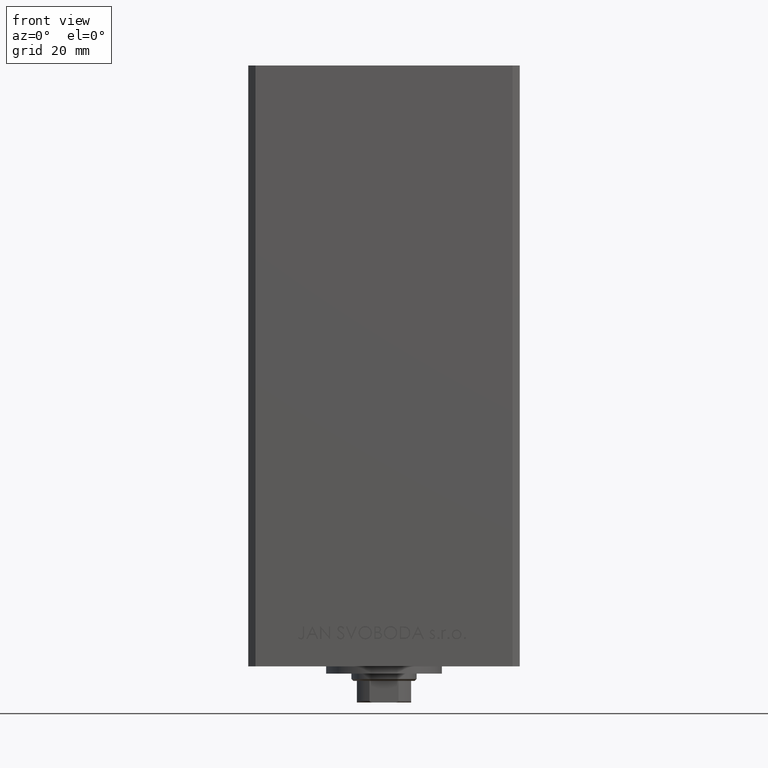
[diagram: clean part render]
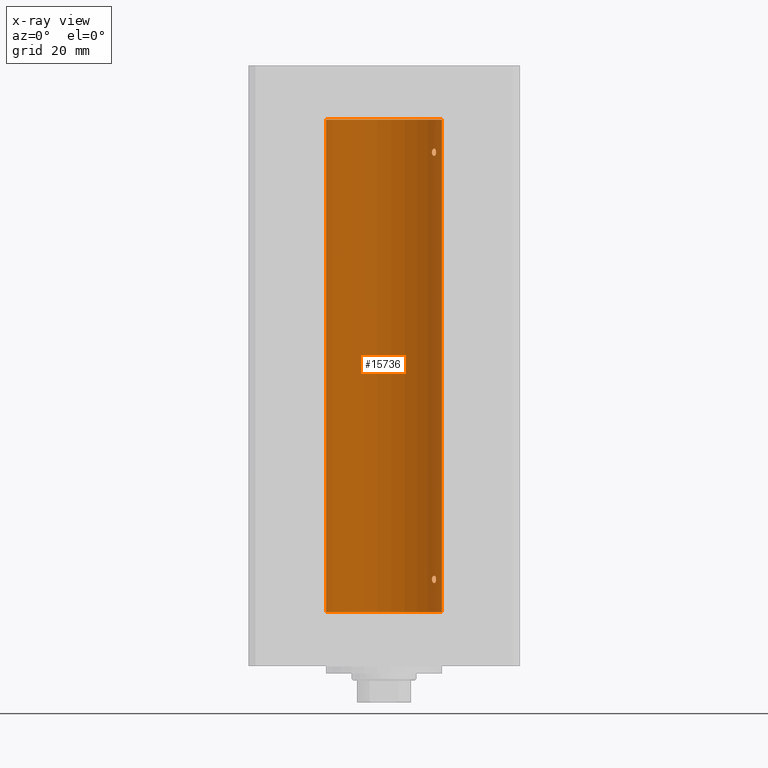
[diagram: x-ray — body ghosted, one internal face saturated and labeled with its STEP entity id]
A machine part, front view, then the same camera in x-ray: the body is ghosted and one INTERNAL B-rep face — a face not visible from any outside direction — is saturated and labeled: STEP entity #15736.
In plain terms, the highlighted cylindrical surface (partial cylindrical patch) has radius 16 mm, axis along (-0, -0, -1).
Its self-contained STEP definition (entity closure, byte-faithful):
#100 = ORIENTED_EDGE ( 'NONE', *, *, #27438, .F. ) ;
#922 = CARTESIAN_POINT ( 'NONE',  ( 14.27601081693604357, 7.225489892961959981, 127.6464466749832383 ) ) ;
#1326 = CARTESIAN_POINT ( 'NONE',  ( 0.000000000000000000, 0.000000000000000000, 136.0000000000000000 ) ) ;
#1563 = ORIENTED_EDGE ( 'NONE', *, *, #27968, .F. ) ;
#1687 = CARTESIAN_POINT ( 'NONE',  ( 14.38749456993875775, 6.999999999998772537, 126.9999999999994742 ) ) ;
#2927 = CARTESIAN_POINT ( 'NONE',  ( 13.22875655532295447, 8.999999999999998224, 8.999999999999994671 ) ) ;
#3222 = CARTESIAN_POINT ( 'NONE',  ( 14.36932461189096877, 7.037242368448794139, 8.720713977669424466 ) ) ;
#3346 = CARTESIAN_POINT ( 'NONE',  ( 13.92009581174527000, 7.889943515799715534, 125.9984609092137617 ) ) ;
#3365 = CIRCLE ( 'NONE', #27985, 16.00000000000000000 ) ;
#3472 = CARTESIAN_POINT ( 'NONE',  ( 14.38374727663542707, 7.007716049903074840, 8.857607929436484895 ) ) ;
#4303 = DIRECTION ( 'NONE',  ( 1.000000000000000000, 0.000000000000000000, 0.000000000000000000 ) ) ;
#4663 = CARTESIAN_POINT ( 'NONE',  ( 14.37260515874679001, 7.030802976542522842, 127.2824317985811149 ) ) ;
#4953 = CARTESIAN_POINT ( 'NONE',  ( 16.00000000000000000, 1.959434878635765131E-15, 0.000000000000000000 ) ) ;
#4966 = B_SPLINE_CURVE_WITH_KNOTS ( 'NONE', 3,
 ( #48326, #48089, #30100, #41078, #29623, #14900, #10690, #18393, #45302, #32865, #29133, #49065, #26362, #25634, #10440, #37091, #3222, #3472, #14664, #22627 ),
 .UNSPECIFIED., .F., .F.,
 ( 4, 2, 2, 2, 2, 2, 2, 2, 2, 4 ),
 ( 0.000000000000000000, 0.0004221896201403055413, 0.0008443792402806110826, 0.001266568860420916624, 0.001688758480561222165, 0.002110948100701527490, 0.002533137720841833248, 0.002955327340982138572, 0.003166422151052288633, 0.003377516961122438259 ),
 .UNSPECIFIED. ) ;
#5384 = EDGE_LOOP ( 'NONE', ( #1563, #30061 ) ) ;
#6335 = CARTESIAN_POINT ( 'NONE',  ( 13.49787029139620920, 8.591848682074020971, 126.1838145871425922 ) ) ;
#6659 = CARTESIAN_POINT ( 'NONE',  ( 13.98853479819183043, 7.771757428685174496, 10.00365939203466681 ) ) ;
#7067 = CARTESIAN_POINT ( 'NONE',  ( 14.35867515080208001, 7.058999333127632170, 126.6544211985381452 ) ) ;
#7320 = CYLINDRICAL_SURFACE ( 'NONE', #13623, 16.00000000000000000 ) ;
#8393 = CARTESIAN_POINT ( 'NONE',  ( 14.38749456993835807, 6.999999999999901412, 127.1411069770375093 ) ) ;
#8629 = CARTESIAN_POINT ( 'NONE',  ( 13.70635209652260400, 8.259251269739737111, 127.9961002086728570 ) ) ;
#8751 = VECTOR ( 'NONE', #20749, 1000.000000000000000 ) ;
#8922 = VERTEX_POINT ( 'NONE', #1687 ) ;
#9607 = CIRCLE ( 'NONE', #34245, 16.00000000000000000 ) ;
#10046 = CARTESIAN_POINT ( 'NONE',  ( 0.000000000000000000, 0.000000000000000000, 136.0000000000000000 ) ) ;
#10440 = CARTESIAN_POINT ( 'NONE',  ( 14.31615587311060445, 7.145052533203043232, 8.462698705274526390 ) ) ;
#10690 = CARTESIAN_POINT ( 'NONE',  ( 13.56526576050683452, 8.485384079562178883, 8.116990538131117816 ) ) ;
#10786 = CARTESIAN_POINT ( 'NONE',  ( 14.38749456993875953, 6.999999999998769873, 8.999999999999467093 ) ) ;
#11044 = FACE_BOUND ( 'NONE', #45312, .T. ) ;
#12600 = CARTESIAN_POINT ( 'NONE',  ( 13.22875655532295802, 8.999999999999996447, 127.0000000000000000 ) ) ;
#12730 = CARTESIAN_POINT ( 'NONE',  ( 0.000000000000000000, 0.000000000000000000, 0.000000000000000000 ) ) ;
#12789 = VERTEX_POINT ( 'NONE', #30609 ) ;
#13108 = EDGE_CURVE ( 'NONE', #21410, #29525, #33463, .T. ) ;
#13393 = ORIENTED_EDGE ( 'NONE', *, *, #21693, .T. ) ;
#13623 = AXIS2_PLACEMENT_3D ( 'NONE', #1326, #23980, #23490 ) ;
#13644 = ORIENTED_EDGE ( 'NONE', *, *, #19765, .F. ) ;
#14664 = CARTESIAN_POINT ( 'NONE',  ( 14.38749456993828879, 7.000000000000026645, 8.929291109518763037 ) ) ;
#14776 = CARTESIAN_POINT ( 'NONE',  ( 14.38749456993875775, 6.999999999998772537, 126.9999999999994742 ) ) ;
#14900 = CARTESIAN_POINT ( 'NONE',  ( 13.49787029139620920, 8.591848682074017418, 8.183814587142569152 ) ) ;
#15736 = ADVANCED_FACE ( 'NONE', ( #45185, #11044, #41445 ), #7320, .F. ) ;
#15986 = DIRECTION ( 'NONE',  ( -0.000000000000000000, 0.000000000000000000, 1.000000000000000000 ) ) ;
#16021 = ORIENTED_EDGE ( 'NONE', *, *, #17659, .F. ) ;
#16112 = CARTESIAN_POINT ( 'NONE',  ( 13.98853479819183043, 7.771757428685177160, 128.0036593920347059 ) ) ;
#16353 = CARTESIAN_POINT ( 'NONE',  ( 13.55739033881264888, 8.499771822136688471, 127.9029833364133140 ) ) ;
#17363 = CARTESIAN_POINT ( 'NONE',  ( 14.37260515874679534, 7.030802976542521954, 9.282431798581109561 ) ) ;
#17469 = B_SPLINE_CURVE_WITH_KNOTS ( 'NONE', 3,
 ( #24517, #21273, #36474, #28500, #40456, #6335, #39719, #20785, #43705, #3346, #26230, #22496, #37451, #22241, #22743, #7067, #33720, #33472, #18258, #14776 ),
 .UNSPECIFIED., .F., .F.,
 ( 4, 2, 2, 2, 2, 2, 2, 2, 2, 4 ),
 ( 0.000000000000000000, 0.0004221896201403046197, 0.0008443792402806092395, 0.001266568860420913805, 0.001688758480561218479, 0.002110948100701523153, 0.002533137720841827610, 0.002955327340982132501, 0.003166422151052284729, 0.003377516961122436958 ),
 .UNSPECIFIED. ) ;
#17659 = EDGE_CURVE ( 'NONE', #44828, #21361, #9607, .T. ) ;
#17917 = CARTESIAN_POINT ( 'NONE',  ( -16.00000000000000000, 0.000000000000000000, 136.0000000000000000 ) ) ;
#18161 = DIRECTION ( 'NONE',  ( -0.000000000000000000, -0.000000000000000000, -1.000000000000000000 ) ) ;
#18258 = CARTESIAN_POINT ( 'NONE',  ( 14.38749456993829767, 7.000000000000029310, 126.9292911095187577 ) ) ;
#18393 = CARTESIAN_POINT ( 'NONE',  ( 13.70633586603034715, 8.255576010093811590, 8.025328610501505366 ) ) ;
#19765 = EDGE_CURVE ( 'NONE', #40856, #44828, #29388, .T. ) ;
#20092 = CARTESIAN_POINT ( 'NONE',  ( 13.32447566991143795, 8.857922402414491359, 127.5314381199038678 ) ) ;
#20749 = DIRECTION ( 'NONE',  ( -0.000000000000000000, -0.000000000000000000, -1.000000000000000000 ) ) ;
#20785 = CARTESIAN_POINT ( 'NONE',  ( 13.70633586603035958, 8.255576010093799155, 126.0253286105015320 ) ) ;
#21273 = CARTESIAN_POINT ( 'NONE',  ( 13.22875655532295447, 8.999999999999998224, 126.8570262609357826 ) ) ;
#21361 = VERTEX_POINT ( 'NONE', #29222 ) ;
#21410 = VERTEX_POINT ( 'NONE', #10786 ) ;
#21693 = EDGE_CURVE ( 'NONE', #40856, #29064, #3365, .T. ) ;
#21836 = CARTESIAN_POINT ( 'NONE',  ( 14.38749456993835807, 6.999999999999894307, 9.141106977037484427 ) ) ;
#22241 = CARTESIAN_POINT ( 'NONE',  ( 14.27574973237575229, 7.225997637813494912, 126.3530782107463466 ) ) ;
#22496 = CARTESIAN_POINT ( 'NONE',  ( 14.11701305531884465, 7.531808851198022126, 126.1073667830906686 ) ) ;
#22627 = CARTESIAN_POINT ( 'NONE',  ( 14.38749456993875953, 6.999999999998769873, 8.999999999999467093 ) ) ;
#22743 = CARTESIAN_POINT ( 'NONE',  ( 14.31615587311060445, 7.145052533203036127, 126.4626987052745193 ) ) ;
#22868 = CARTESIAN_POINT ( 'NONE',  ( 16.00000000000000000, 1.959434878635765131E-15, 136.0000000000000000 ) ) ;
#23490 = DIRECTION ( 'NONE',  ( -1.000000000000000000, 0.000000000000000000, 0.000000000000000000 ) ) ;
#23810 = CARTESIAN_POINT ( 'NONE',  ( 13.37722806521492913, 8.778496895713761461, 127.6404922157021673 ) ) ;
#23980 = DIRECTION ( 'NONE',  ( -0.000000000000000000, -0.000000000000000000, -1.000000000000000000 ) ) ;
#24439 = B_SPLINE_CURVE_WITH_KNOTS ( 'NONE', 3,
 ( #35293, #8393, #4663, #35047, #922, #42769, #16112, #8629, #16353, #23810, #20092, #31546, #46754, #12600 ),
 .UNSPECIFIED., .F., .F.,
 ( 4, 2, 2, 2, 2, 2, 4 ),
 ( 0.003377516961122436958, 0.003798778705083865476, 0.004220040449045293560, 0.005062563936968100288, 0.005905087424890907016, 0.006326349168852314284, 0.006747610912813719816 ),
 .UNSPECIFIED. ) ;
#24517 = CARTESIAN_POINT ( 'NONE',  ( 13.22875655532295802, 8.999999999999996447, 127.0000000000000000 ) ) ;
#24589 = CARTESIAN_POINT ( 'NONE',  ( 13.37722806521492025, 8.778496895713756132, 9.640492215702138878 ) ) ;
#24798 = EDGE_LOOP ( 'NONE', ( #13644, #13393, #49027, #16021 ) ) ;
#25634 = CARTESIAN_POINT ( 'NONE',  ( 14.27574973237574696, 7.225997637813494023, 8.353078210746339494 ) ) ;
#26230 = CARTESIAN_POINT ( 'NONE',  ( 13.98799506618804855, 7.768796316246572964, 126.0189078186199083 ) ) ;
#26362 = CARTESIAN_POINT ( 'NONE',  ( 14.17516445690067428, 7.421373518623910037, 8.173695665549439937 ) ) ;
#27438 = EDGE_CURVE ( 'NONE', #12789, #8922, #17469, .T. ) ;
#27968 = EDGE_CURVE ( 'NONE', #29525, #21410, #4966, .T. ) ;
#27985 = AXIS2_PLACEMENT_3D ( 'NONE', #10046, #32958, #40932 ) ;
#28500 = CARTESIAN_POINT ( 'NONE',  ( 13.32443414199768306, 8.857985377928109472, 126.4686058303161360 ) ) ;
#28833 = CARTESIAN_POINT ( 'NONE',  ( 14.31678893103186390, 7.143775209822729622, 9.534780048070684799 ) ) ;
#29064 = VERTEX_POINT ( 'NONE', #17917 ) ;
#29133 = CARTESIAN_POINT ( 'NONE',  ( 13.98799506618804855, 7.768796316246572964, 8.018907818619863903 ) ) ;
#29222 = CARTESIAN_POINT ( 'NONE',  ( -16.00000000000000000, 0.000000000000000000, 0.000000000000000000 ) ) ;
#29315 = CARTESIAN_POINT ( 'NONE',  ( 13.32447566991143439, 8.857922402414480700, 9.531438119903825168 ) ) ;
#29388 = LINE ( 'NONE', #33126, #32758 ) ;
#29460 = CARTESIAN_POINT ( 'NONE',  ( 13.22875655532295447, 8.999999999999998224, 8.999999999999994671 ) ) ;
#29525 = VERTEX_POINT ( 'NONE', #29460 ) ;
#29623 = CARTESIAN_POINT ( 'NONE',  ( 13.37714181818049575, 8.778635597591465611, 8.359554766746297716 ) ) ;
#30061 = ORIENTED_EDGE ( 'NONE', *, *, #13108, .F. ) ;
#30100 = CARTESIAN_POINT ( 'NONE',  ( 13.25010819131475159, 8.968783812673564171, 8.717198662283735189 ) ) ;
#30396 = EDGE_CURVE ( 'NONE', #8922, #12789, #24439, .T. ) ;
#30609 = CARTESIAN_POINT ( 'NONE',  ( 13.22875655532295802, 8.999999999999996447, 127.0000000000000000 ) ) ;
#31546 = CARTESIAN_POINT ( 'NONE',  ( 13.25022586032983973, 8.968609469449800642, 127.2832896389628985 ) ) ;
#32327 = CARTESIAN_POINT ( 'NONE',  ( 14.38749456993875953, 6.999999999998769873, 8.999999999999467093 ) ) ;
#32758 = VECTOR ( 'NONE', #18161, 1000.000000000000000 ) ;
#32865 = CARTESIAN_POINT ( 'NONE',  ( 13.92009581174526822, 7.889943515799717311, 7.998460909213807035 ) ) ;
#32958 = DIRECTION ( 'NONE',  ( -0.000000000000000000, 0.000000000000000000, 1.000000000000000000 ) ) ;
#33058 = CARTESIAN_POINT ( 'NONE',  ( 14.27601081693604712, 7.225489892961965310, 9.646446674983275571 ) ) ;
#33126 = CARTESIAN_POINT ( 'NONE',  ( 16.00000000000000000, 1.959434878635765131E-15, 136.0000000000000000 ) ) ;
#33463 = B_SPLINE_CURVE_WITH_KNOTS ( 'NONE', 3,
 ( #32327, #21836, #17363, #28833, #33058, #44032, #6659, #40530, #47538, #24589, #29315, #40293, #37040, #2927 ),
 .UNSPECIFIED., .F., .F.,
 ( 4, 2, 2, 2, 2, 2, 4 ),
 ( 0.003377516961122438259, 0.003798778705083848996, 0.004220040449045259733, 0.005062563936968083808, 0.005905087424890908751, 0.006326349168852319488, 0.006747610912813730225 ),
 .UNSPECIFIED. ) ;
#33472 = CARTESIAN_POINT ( 'NONE',  ( 14.38374727663543062, 7.007716049903079281, 126.8576079294365400 ) ) ;
#33720 = CARTESIAN_POINT ( 'NONE',  ( 14.36932461189096522, 7.037242368448795915, 126.7207139776694333 ) ) ;
#34245 = AXIS2_PLACEMENT_3D ( 'NONE', #12730, #15986, #4303 ) ;
#35047 = CARTESIAN_POINT ( 'NONE',  ( 14.31678893103185679, 7.143775209822727845, 127.5347800480706724 ) ) ;
#35293 = CARTESIAN_POINT ( 'NONE',  ( 14.38749456993875775, 6.999999999998772537, 126.9999999999994742 ) ) ;
#35957 = LINE ( 'NONE', #36441, #8751 ) ;
#36441 = CARTESIAN_POINT ( 'NONE',  ( -16.00000000000000000, 0.000000000000000000, 136.0000000000000000 ) ) ;
#36474 = CARTESIAN_POINT ( 'NONE',  ( 13.25010819131476048, 8.968783812673565947, 126.7171986622837636 ) ) ;
#37040 = CARTESIAN_POINT ( 'NONE',  ( 13.22875655532295625, 9.000000000000000000, 9.142659515501296852 ) ) ;
#37091 = CARTESIAN_POINT ( 'NONE',  ( 14.35867515080208356, 7.058999333127636611, 8.654421198538130966 ) ) ;
#37451 = CARTESIAN_POINT ( 'NONE',  ( 14.17516445690067606, 7.421373518623913590, 126.1736956655494453 ) ) ;
#37979 = EDGE_CURVE ( 'NONE', #29064, #21361, #35957, .T. ) ;
#39719 = CARTESIAN_POINT ( 'NONE',  ( 13.56526576050684341, 8.485384079562173554, 126.1169905381311054 ) ) ;
#40293 = CARTESIAN_POINT ( 'NONE',  ( 13.25022586032984329, 8.968609469449802418, 9.283289638962903823 ) ) ;
#40456 = CARTESIAN_POINT ( 'NONE',  ( 13.37714181818049752, 8.778635597591465611, 126.3595547667463137 ) ) ;
#40530 = CARTESIAN_POINT ( 'NONE',  ( 13.70635209652260222, 8.259251269739738888, 9.996100208672867637 ) ) ;
#40856 = VERTEX_POINT ( 'NONE', #22868 ) ;
#40932 = DIRECTION ( 'NONE',  ( 1.000000000000000000, 0.000000000000000000, 0.000000000000000000 ) ) ;
#41078 = CARTESIAN_POINT ( 'NONE',  ( 13.32443414199768839, 8.857985377928104143, 8.468605830316136007 ) ) ;
#41445 = FACE_BOUND ( 'NONE', #5384, .T. ) ;
#41840 = ORIENTED_EDGE ( 'NONE', *, *, #30396, .F. ) ;
#42769 = CARTESIAN_POINT ( 'NONE',  ( 14.12440581436493048, 7.519967855344577679, 127.9168456675479888 ) ) ;
#43705 = CARTESIAN_POINT ( 'NONE',  ( 13.77746685470184218, 8.136441676695669756, 126.0017131429554667 ) ) ;
#44032 = CARTESIAN_POINT ( 'NONE',  ( 14.12440581436493225, 7.519967855344579455, 9.916845667547992349 ) ) ;
#44828 = VERTEX_POINT ( 'NONE', #4953 ) ;
#45185 = FACE_OUTER_BOUND ( 'NONE', #24798, .T. ) ;
#45302 = CARTESIAN_POINT ( 'NONE',  ( 13.77746685470184040, 8.136441676695669756, 8.001713142955473757 ) ) ;
#45312 = EDGE_LOOP ( 'NONE', ( #100, #41840 ) ) ;
#46754 = CARTESIAN_POINT ( 'NONE',  ( 13.22875655532295625, 8.999999999999994671, 127.1426595155012933 ) ) ;
#47538 = CARTESIAN_POINT ( 'NONE',  ( 13.55739033881265065, 8.499771822136686694, 9.902983336413296200 ) ) ;
#48089 = CARTESIAN_POINT ( 'NONE',  ( 13.22875655532296157, 9.000000000000000000, 8.857026260935734641 ) ) ;
#48326 = CARTESIAN_POINT ( 'NONE',  ( 13.22875655532295447, 8.999999999999998224, 8.999999999999994671 ) ) ;
#49027 = ORIENTED_EDGE ( 'NONE', *, *, #37979, .T. ) ;
#49065 = CARTESIAN_POINT ( 'NONE',  ( 14.11701305531884287, 7.531808851198022126, 8.107366783090686368 ) ) ;